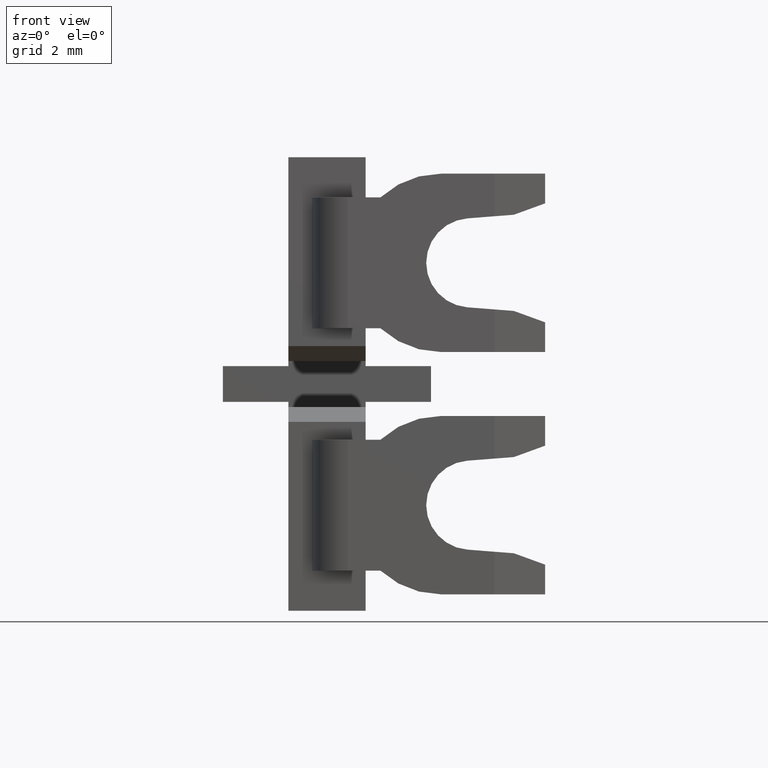
[diagram: clean part render]
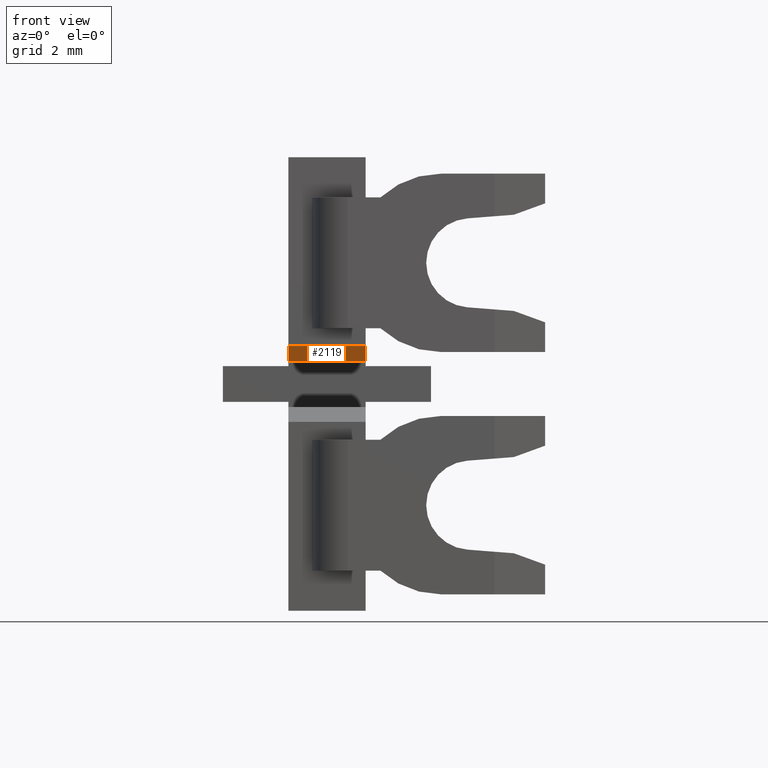
[diagram: same view with one face highlighted and labeled with its STEP entity id]
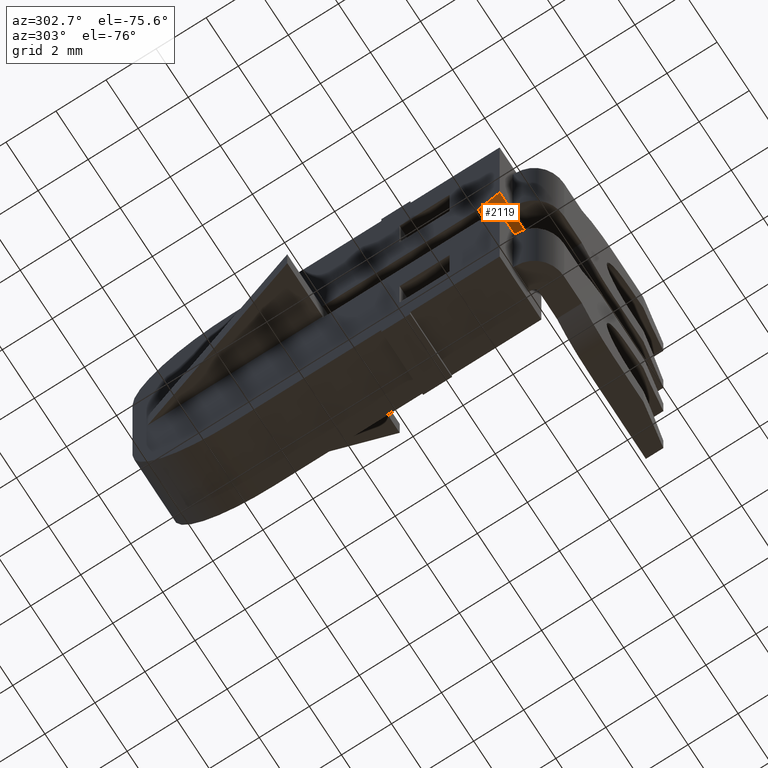
[diagram: same view with one face highlighted and labeled with its STEP entity id]
A machine part, front view. The second image highlights one B-rep face of the part: STEP entity #2119.
A second angle (auxiliary view) of the same face is appended — the face is thin or edge-on in the first view.
In plain terms, the highlighted planar face has unit normal (0, 0.5, 0.866).
Its self-contained STEP definition (entity closure, byte-faithful):
#51 = CARTESIAN_POINT ( 'NONE',  ( 1472.445209356664000, 1080.259529724810100, 1.250000000000000000 ) ) ;
#64 = DIRECTION ( 'NONE',  ( 1.000000000000000000, 3.538835890992685300E-015, -3.127885073672970000E-015 ) ) ;
#97 = LINE ( 'NONE', #51, #549 ) ;
#104 = LINE ( 'NONE', #118, #460 ) ;
#112 = DIRECTION ( 'NONE',  ( 4.798054992358783100E-015, -0.8660254037844383700, 0.5000000000000003300 ) ) ;
#118 = CARTESIAN_POINT ( 'NONE',  ( 1472.445209356664000, 1080.259529724810100, 1.250000000000000000 ) ) ;
#172 = CARTESIAN_POINT ( 'NONE',  ( 1475.045209356663900, 1081.125555128594000, 0.7500000000000000000 ) ) ;
#183 = CARTESIAN_POINT ( 'NONE',  ( 1472.445209356664000, 1080.259529724810100, 1.250000000000000000 ) ) ;
#252 = CARTESIAN_POINT ( 'NONE',  ( 1472.445209356664000, 1081.125555128594000, 0.7500000000000000000 ) ) ;
#292 = CARTESIAN_POINT ( 'NONE',  ( 1475.045209356663900, 1080.259529724810100, 1.250000000000000000 ) ) ;
#412 = VECTOR ( 'NONE', #2610, 1000.000000000000100 ) ;
#460 = VECTOR ( 'NONE', #112, 1000.000000000000100 ) ;
#466 = VECTOR ( 'NONE', #1358, 1000.000000000000000 ) ;
#549 = VECTOR ( 'NONE', #64, 1000.000000000000000 ) ;
#691 = AXIS2_PLACEMENT_3D ( 'NONE', #967, #974, #976 ) ;
#950 = FACE_OUTER_BOUND ( 'NONE', #2717, .T. ) ;
#962 = PLANE ( 'NONE',  #691 ) ;
#967 = CARTESIAN_POINT ( 'NONE',  ( 1472.445209356664000, 1080.259529724810100, 1.250000000000000000 ) ) ;
#974 = DIRECTION ( 'NONE',  ( 9.315539316551394400E-016, 0.5000000000000003300, 0.8660254037844384900 ) ) ;
#976 = DIRECTION ( 'NONE',  ( 1.000000000000000000, 0.0000000000000000000, -1.075665826411498100E-015 ) ) ;
#1356 = LINE ( 'NONE', #1357, #466 ) ;
#1357 = CARTESIAN_POINT ( 'NONE',  ( 1470.045209356664100, 1081.125555128594000, 0.7500000000000000000 ) ) ;
#1358 = DIRECTION ( 'NONE',  ( -1.000000000000000000, -3.538835890992685300E-015, 3.127885073672970000E-015 ) ) ;
#1875 = EDGE_CURVE ( 'NONE', #2898, #2811, #2598, .T. ) ;
#1914 = EDGE_CURVE ( 'NONE', #2811, #2859, #1356, .T. ) ;
#2119 = ADVANCED_FACE ( 'NONE', ( #950 ), #962, .F. ) ;
#2220 = EDGE_CURVE ( 'NONE', #2810, #2898, #97, .T. ) ;
#2228 = EDGE_CURVE ( 'NONE', #2859, #2810, #104, .T. ) ;
#2598 = LINE ( 'NONE', #2608, #412 ) ;
#2608 = CARTESIAN_POINT ( 'NONE',  ( 1475.045209356663900, 1080.259529724810100, 1.250000000000000000 ) ) ;
#2610 = DIRECTION ( 'NONE',  ( -4.798054992358783100E-015, 0.8660254037844383700, -0.5000000000000003300 ) ) ;
#2717 = EDGE_LOOP ( 'NONE', ( #2978, #2994, #3043, #2984 ) ) ;
#2810 = VERTEX_POINT ( 'NONE', #183 ) ;
#2811 = VERTEX_POINT ( 'NONE', #172 ) ;
#2859 = VERTEX_POINT ( 'NONE', #252 ) ;
#2898 = VERTEX_POINT ( 'NONE', #292 ) ;
#2978 = ORIENTED_EDGE ( 'NONE', *, *, #1875, .F. ) ;
#2984 = ORIENTED_EDGE ( 'NONE', *, *, #1914, .F. ) ;
#2994 = ORIENTED_EDGE ( 'NONE', *, *, #2220, .F. ) ;
#3043 = ORIENTED_EDGE ( 'NONE', *, *, #2228, .F. ) ;